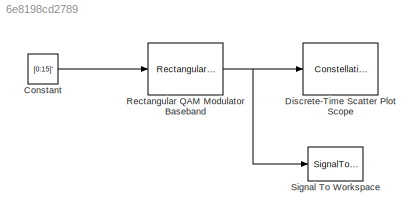
MODEL slx_6e8198cd2789
KIND model
BLOCK [Constant] Constant
  FramePeriod = 1
  SamplingMode = Frame based
  Value = [0:15]'
  VectorParams1D = off
BLOCK [ConstellationDiagram] Discrete-Time Scatter Plot Scope
  Ports = [1]
  Tag = ScatterPlot
BLOCK [Reference] Rectangular QAM Modulator Baseband  REF=commdigbbndam3/Rectangular QAM
Modulator
Baseband
  AvgPow = 1
  Enc = Binary
  InType = Integer
  M = 16
  Mapping = [0:15]
  MinDist = 2
  PeakPow = 1
  Ph = 0
  Ports = [1, 1]
  PowType = Min. distance between symbols
  SourceBlock = commdigbbndam3/Rectangular QAM\nModulator\nBaseband
  SourceType = Rectangular QAM Modulator Baseband
  outDtype = double
  outFracLen = 15
  outFracLenMode = User-defined
  outUDDataType = sfix(16)
  outWordLen = 16
BLOCK [SignalToWorkspace] Signal To Workspace
  CopyFcn = dspblkcopystw(gcbh);
  MaxDataPoints = inf
  Ports = [1]
  Save2DSignal = Inherit from input (this choice will be removed - see release notes)
  VariableName = yout
LINE Constant:1 -> Rectangular QAM Modulator Baseband:1
NET Rectangular QAM Modulator Baseband:1 -> Discrete-Time Scatter Plot Scope:1, Signal To Workspace:1
note: NET lines group one-source signal fan-out (src -> all destinations, sorted); 1:1 wires keep LINE
